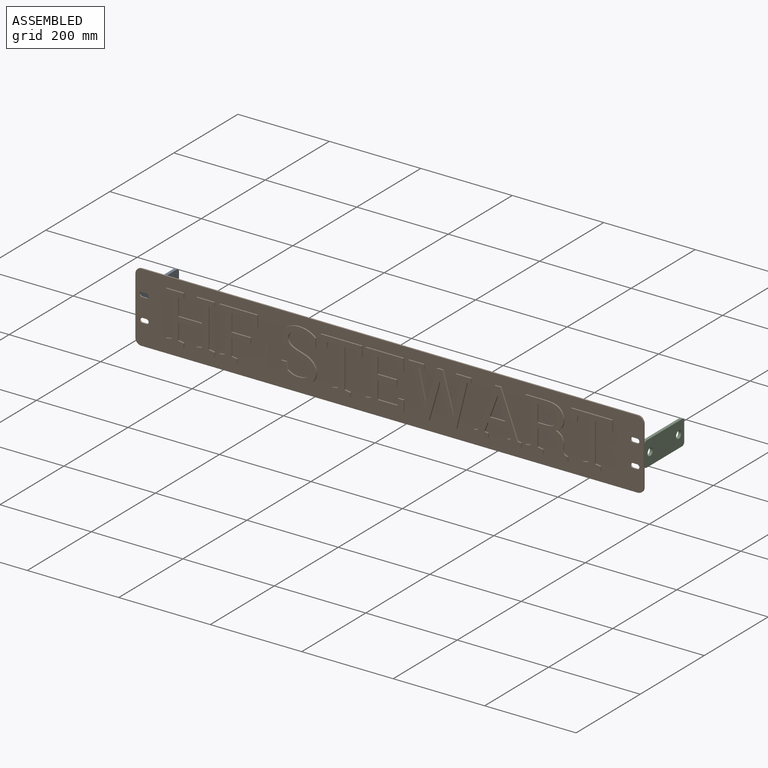
[diagram: assembled view]
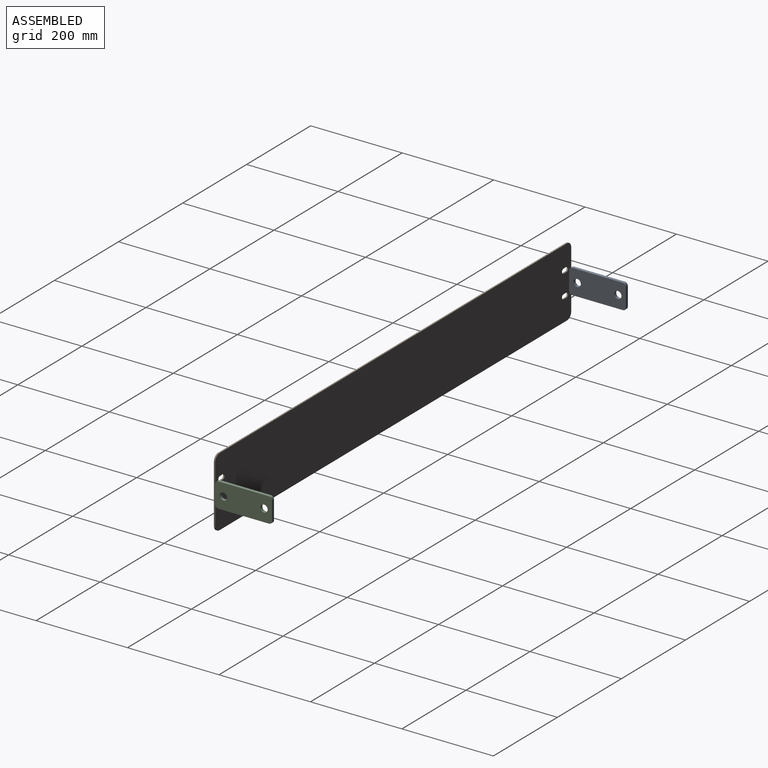
[diagram: assembled view, second angle]
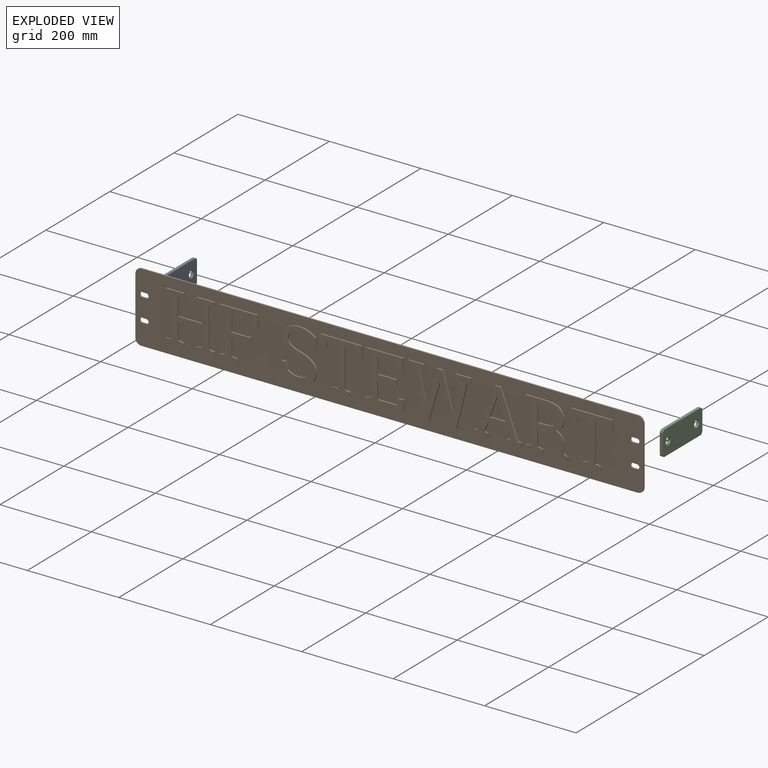
[diagram: exploded view]
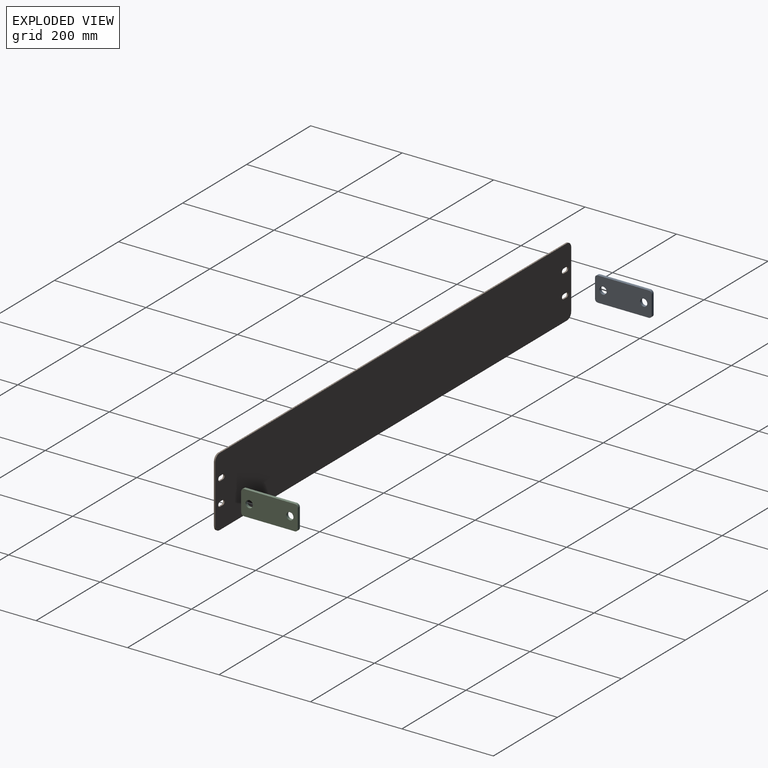
[diagram: exploded view, second angle]
ASSEMBLY  parts=3 mates=2
PART A: 12 faces, bbox 123.8x6.4x54 mm
  f0: plane 41.28x6.35mm, normal (1,0,0), area 262.1mm2, adj f1,f9,f10,f11
  f1: cylinder r=6.35mm len=6.35mm, axis (0,1,0), area 63.3mm2, adj f0,f2,f10,f11
  f2: plane 111.13x6.35mm, normal (0,0,1), area 705.6mm2, adj f1,f3,f10,f11
  f3: cylinder r=6.35mm len=6.35mm, axis (0,1,0), area 63.3mm2, adj f2,f4,f10,f11
  f4: plane 41.28x6.35mm, normal (-1,0,0), area 262.1mm2, adj f3,f5,f10,f11
  f5: cylinder r=6.35mm len=6.35mm, axis (0,1,0), area 63.3mm2, adj f4,f6,f10,f11
  f6: plane 111.13x6.35mm, normal (0,0,-1), area 705.6mm2, adj f5,f9,f10,f11
  f7: cylinder r=7.94mm len=15.88mm, axis (0,1,0), area 316.7mm2, adj f10,f11
  f8: cylinder r=7.94mm len=15.88mm, axis (0,1,0), area 316.7mm2, adj f10,f11
  f9: cylinder r=6.35mm len=6.35mm, axis (0,1,0), area 63.3mm2, adj f0,f6,f10,f11
  f10: plane 123.83x53.98mm, normal (0,-1,0), area 6253mm2, adj f0,f1,f2,f3,f4,f5,f6,f7
  f11: plane 123.83x53.98mm, normal (0,1,0), area 6253mm2, adj f0,f1,f2,f3,f4,f5,f6,f7
PART B: 250 faces, bbox 1111.3x6.4x152.4 mm
  f0: plane 127x3.18mm, normal (-1,0,0), area 403.2mm2, adj f4,f23,f24,f227
  f1: plane 1085.85x3.18mm, normal (0,0,-1), area 3447.6mm2, adj f4,f5,f24,f227
  f2: plane 127x3.18mm, normal (1,0,0), area 403.2mm2, adj f5,f6,f24,f227
  f3: plane 1085.85x3.18mm, normal (0,0,1), area 3447.6mm2, adj f6,f23,f24,f227
  f4: cylinder r=12.7mm len=12.7mm, axis (0,1,0), area 63.3mm2, adj f0,f1,f24,f227
  f5: cylinder r=12.7mm len=12.7mm, axis (0,1,0), area 63.3mm2, adj f1,f2,f24,f227
  f6: cylinder r=12.7mm len=12.7mm, axis (0,1,0), area 63.3mm2, adj f2,f3,f24,f227
  f7: plane 9.53x3.18mm, normal (0,0,-1), area 30.2mm2, adj f8,f19,f24,f227
  f8: cylinder r=5.08mm len=10.16mm, axis (0,1,0), area 50.7mm2, adj f7,f9,f24,f227
  f9: plane 9.53x3.18mm, normal (0,0,1), area 30.2mm2, adj f8,f19,f24,f227
  f10: plane 9.53x3.18mm, normal (0,0,-1), area 30.2mm2, adj f11,f20,f24,f227
  f11: cylinder r=5.08mm len=10.16mm, axis (0,1,0), area 50.7mm2, adj f10,f12,f24,f227
  f12: plane 9.53x3.18mm, normal (0,0,1), area 30.2mm2, adj f11,f20,f24,f227
  f13: plane 9.53x3.18mm, normal (0,0,-1), area 30.2mm2, adj f14,f21,f24,f227
  f14: cylinder r=5.08mm len=10.16mm, axis (0,1,0), area 50.7mm2, adj f13,f15,f24,f227
  f15: plane 9.53x3.18mm, normal (0,0,1), area 30.2mm2, adj f14,f21,f24,f227
  f16: cylinder r=5.08mm len=10.16mm, axis (0,1,0), area 50.7mm2, adj f17,f22,f24,f227
  f17: plane 9.53x3.18mm, normal (0,0,-1), area 30.2mm2, adj f16,f18,f24,f227
  f18: cylinder r=5.08mm len=10.16mm, axis (0,1,0), area 50.7mm2, adj f17,f22,f24,f227
  f19: cylinder r=5.08mm len=10.16mm, axis (0,1,0), area 50.7mm2, adj f7,f9,f24,f227
  f20: cylinder r=5.08mm len=10.16mm, axis (0,1,0), area 50.7mm2, adj f10,f12,f24,f227
  f21: cylinder r=5.08mm len=10.16mm, axis (0,1,0), area 50.7mm2, adj f13,f15,f24,f227
  f22: plane 9.53x3.18mm, normal (0,0,1), area 30.2mm2, adj f16,f18,f24,f227
  f23: cylinder r=12.7mm len=12.7mm, axis (0,1,0), area 63.3mm2, adj f0,f3,f24,f227
  f24: plane 1111.25x152.4mm, normal (0,1,0), area 168504.7mm2, adj f0,f1,f2,f3,f4,f5,f6,f7
  f25: plane 12.07x3.18mm, normal (-0.17,0,-0.99), area 38.9mm2, adj f26,f226,f227,f249
  f26: plane 9.42x3.18mm, normal (-1,0,0), area 29.9mm2, adj f25,f27,f227,f249
  f27: plane 38.76x3.18mm, normal (0,0,1), area 123.1mm2, adj f26,f28,f227,f249
  f28: plane 9.42x3.18mm, normal (1,0,0), area 29.9mm2, adj f27,f29,f227,f249
  f29: plane 12.07x3.18mm, normal (0.17,0,-0.99), area 38.9mm2, adj f28,f30,f227,f249
  f30: plane 37.29x3.18mm, normal (1,0,0), area 118.4mm2, adj f29,f31,f227,f249
  f31: plane 52.33x3.18mm, normal (0,0,1), area 166.1mm2, adj f30,f32,f227,f249
  f32: plane 37.29x3.18mm, normal (-1,0,0), area 118.4mm2, adj f31,f33,f227,f249
  f33: plane 12.07x3.18mm, normal (-0.17,0,-0.99), area 38.9mm2, adj f32,f34,f227,f249
  f34: plane 9.42x3.18mm, normal (-1,0,0), area 29.9mm2, adj f33,f35,f227,f249
  f35: plane 38.76x3.18mm, normal (0,0,1), area 123.1mm2, adj f34,f36,f227,f249
  f36: plane 9.42x3.18mm, normal (1,0,0), area 29.9mm2, adj f35,f37,f227,f249
  f37: plane 12.07x3.18mm, normal (0.17,0,-0.99), area 38.9mm2, adj f36,f38,f227,f249
  f38: plane 85.04x3.18mm, normal (1,0,0), area 270mm2, adj f37,f39,f227,f249
  f39: plane 12.07x3.18mm, normal (0.17,0,0.99), area 38.9mm2, adj f38,f40,f227,f249
  f40: plane 9.35x3.18mm, normal (1,0,0), area 29.7mm2, adj f39,f41,f227,f249
  f41: plane 38.76x3.18mm, normal (0,0,-1), area 123.1mm2, adj f40,f42,f227,f249
  f42: plane 9.35x3.18mm, normal (-1,0,0), area 29.7mm2, adj f41,f43,f227,f249
  f43: plane 12.07x3.18mm, normal (-0.17,0,0.99), area 38.9mm2, adj f42,f44,f227,f249
  f44: plane 36.24x3.18mm, normal (-1,0,0), area 115.1mm2, adj f43,f45,f227,f249
  f45: plane 52.33x3.18mm, normal (0,0,-1), area 166.1mm2, adj f44,f46,f227,f249
  f46: plane 36.24x3.18mm, normal (1,0,0), area 115.1mm2, adj f45,f47,f227,f249
  f47: plane 12.07x3.18mm, normal (0.17,0,0.99), area 38.9mm2, adj f46,f48,f227,f249
  f48: plane 9.35x3.18mm, normal (1,0,0), area 29.7mm2, adj f47,f49,f227,f249
  f49: plane 38.76x3.18mm, normal (0,0,-1), area 123.1mm2, adj f48,f50,f227,f249
  f50: plane 9.35x3.18mm, normal (-1,0,0), area 29.7mm2, adj f49,f51,f227,f249
  f51: plane 12.07x3.18mm, normal (-0.17,0,0.99), area 38.9mm2, adj f50,f226,f227,f249
  f52: plane 9.35x3.18mm, normal (-1,0,0), area 29.7mm2, adj f53,f218,f227,f235
  f53: plane 12.07x3.18mm, normal (-0.17,0,0.99), area 38.9mm2, adj f52,f54,f227,f235
  f54: plane 85.04x3.18mm, normal (-1,0,0), area 270mm2, adj f53,f55,f227,f235
  f55: plane 12.07x3.18mm, normal (-0.17,0,-0.99), area 38.9mm2, adj f54,f56,f227,f235
  f56: plane 9.42x3.18mm, normal (-1,0,0), area 29.9mm2, adj f55,f57,f227,f235
  f57: plane 83.4x3.18mm, normal (0,0,1), area 264.8mm2, adj f56,f58,f227,f235
  f58: plane 25.95x3.18mm, normal (1,0,0), area 82.4mm2, adj f57,f59,f227,f235
  f59: plane 12.45x3.18mm, normal (0,0,-1), area 39.5mm2, adj f58,f60,f227,f235
  f60: plane 14.47x3.18mm, normal (-1,0,-0.08), area 46.1mm2, adj f59,f61,f227,f235
  f61: plane 43.08x3.18mm, normal (0,0,-1), area 136.8mm2, adj f60,f62,f227,f235
  f62: plane 37.22x3.18mm, normal (1,0,0), area 118.2mm2, adj f61,f63,f227,f235
  f63: plane 41.72x3.18mm, normal (0,0,1), area 132.5mm2, adj f62,f64,f227,f235
  f64: plane 11.48x3.18mm, normal (1,0,0), area 36.5mm2, adj f63,f65,f227,f235
  f65: plane 41.72x3.18mm, normal (0,0,-1), area 132.5mm2, adj f64,f66,f227,f235
  f66: plane 36.34x3.18mm, normal (1,0,0), area 115.4mm2, adj f65,f67,f227,f235
  f67: plane 12.07x3.18mm, normal (0.17,0,0.99), area 38.9mm2, adj f66,f68,f227,f235
  f68: plane 9.35x3.18mm, normal (1,0,0), area 29.7mm2, adj f67,f218,f227,f235
  f69: plane 20.09x3.18mm, normal (1,0,0), area 63.8mm2, adj f70,f219,f227,f234
  f70: plane 11.05x3.18mm, normal (0,0,-1), area 35.1mm2, adj f69,f71,f227,f234
  f71: plane 15.42x3.18mm, normal (-0.98,0,-0.18), area 49.7mm2, adj f70,f72,f227,f234
  f72: extruded ~8.88x4.67mm, area 32.1mm2, adj f71,f73,f227,f234
  f73: extruded ~12.89x3.18mm, area 41.5mm2, adj f72,f74,f227,f234
  f74: extruded ~17.87x4.92mm, area 60mm2, adj f73,f75,f227,f234
  f75: extruded ~12.87x6.23mm, area 47.1mm2, adj f74,f76,f227,f234
  f76: extruded ~11.74x6.33mm, area 44.1mm2, adj f75,f77,f227,f234
  f77: extruded ~20.49x8.25mm, area 70.5mm2, adj f76,f78,f227,f234
  f78: extruded ~25.91x12.47mm, area 92.3mm2, adj f77,f79,f227,f234
  f79: extruded ~20.39x8.86mm, area 72.8mm2, adj f78,f80,f227,f234
  f80: extruded ~20.98x10.64mm, area 77.7mm2, adj f79,f81,f227,f234
  f81: extruded ~27.84x7.93mm, area 93.5mm2, adj f80,f82,f227,f234
  f82: extruded ~22.13x4.08mm, area 71.9mm2, adj f81,f83,f227,f234
  f83: extruded ~15.75x10.67mm, area 60.9mm2, adj f82,f84,f227,f234
  f84: plane 20.09x3.18mm, normal (-1,0,0), area 63.8mm2, adj f83,f85,f227,f234
  f85: plane 10.98x3.18mm, normal (0,0,1), area 34.9mm2, adj f84,f86,f227,f234
  f86: plane 15.49x3.18mm, normal (0.98,0,0.18), area 50mm2, adj f85,f87,f227,f234
  f87: extruded ~10.09x5.7mm, area 37mm2, adj f86,f88,f227,f234
  f88: extruded ~14.01x3.18mm, area 45.3mm2, adj f87,f89,f227,f234
  f89: extruded ~17.46x4.66mm, area 58.3mm2, adj f88,f90,f227,f234
  f90: extruded ~12.68x6.4mm, area 47mm2, adj f89,f91,f227,f234
  f91: extruded ~12.41x5.55mm, area 44.5mm2, adj f90,f92,f227,f234
  f92: extruded ~19.64x8.42mm, area 68.5mm2, adj f91,f93,f227,f234
  f93: extruded ~26.77x12.01mm, area 93.9mm2, adj f92,f94,f227,f234
  f94: extruded ~19.94x9.64mm, area 72.8mm2, adj f93,f95,f227,f234
  f95: extruded ~21.09x10.76mm, area 78mm2, adj f94,f96,f227,f234
  f96: extruded ~27.95x8.42mm, area 94.5mm2, adj f95,f97,f227,f234
  f97: extruded ~20.64x3.89mm, area 67.1mm2, adj f96,f219,f227,f234
  f98: plane 89.69x3.18mm, normal (0,0,1), area 284.8mm2, adj f99,f220,f227,f233
  f99: plane 23.86x3.18mm, normal (1,0,0), area 75.8mm2, adj f98,f100,f227,f233
  f100: plane 12.45x3.18mm, normal (0,0,-1), area 39.5mm2, adj f99,f101,f227,f233
  f101: plane 12.38x3.18mm, normal (-1,0,-0.09), area 39.5mm2, adj f100,f102,f227,f233
  f102: plane 23.93x3.18mm, normal (0,0,-1), area 76mm2, adj f101,f103,f227,f233
  f103: plane 85.04x3.18mm, normal (1,0,0), area 270mm2, adj f102,f104,f227,f233
  f104: plane 12.07x3.18mm, normal (0.17,0,0.99), area 38.9mm2, adj f103,f105,f227,f233
  f105: plane 9.35x3.18mm, normal (1,0,0), area 29.7mm2, adj f104,f106,f227,f233
  f106: plane 38.76x3.18mm, normal (0,0,-1), area 123.1mm2, adj f105,f107,f227,f233
  f107: plane 9.35x3.18mm, normal (-1,0,0), area 29.7mm2, adj f106,f108,f227,f233
  f108: plane 12.07x3.18mm, normal (-0.17,0,0.99), area 38.9mm2, adj f107,f109,f227,f233
  f109: plane 85.04x3.18mm, normal (-1,0,0), area 270mm2, adj f108,f110,f227,f233
  f110: plane 24.01x3.18mm, normal (0,0,-1), area 76.2mm2, adj f109,f111,f227,f233
  f111: plane 12.38x3.18mm, normal (1,0,-0.08), area 39.5mm2, adj f110,f112,f227,f233
  f112: plane 12.52x3.18mm, normal (0,0,-1), area 39.8mm2, adj f111,f220,f227,f233
  f113: plane 83.69x3.18mm, normal (0,0,-1), area 265.7mm2, adj f114,f221,f227,f232
  f114: plane 9.35x3.18mm, normal (-1,0,0), area 29.7mm2, adj f113,f115,f227,f232
  f115: plane 12.07x3.18mm, normal (-0.17,0,0.99), area 38.9mm2, adj f114,f116,f227,f232
  f116: plane 85.04x3.18mm, normal (-1,0,0), area 270mm2, adj f115,f117,f227,f232
  f117: plane 12.07x3.18mm, normal (-0.17,0,-0.99), area 38.9mm2, adj f116,f118,f227,f232
  f118: plane 9.42x3.18mm, normal (-1,0,0), area 29.9mm2, adj f117,f119,f227,f232
  f119: plane 82.88x3.18mm, normal (0,0,1), area 263.1mm2, adj f118,f120,f227,f232
  f120: plane 25.95x3.18mm, normal (1,0,0), area 82.4mm2, adj f119,f121,f227,f232
  f121: plane 12.52x3.18mm, normal (0,0,-1), area 39.8mm2, adj f120,f122,f227,f232
  f122: plane 14.47x3.18mm, normal (-1,0,-0.08), area 46.1mm2, adj f121,f123,f227,f232
  f123: plane 42.48x3.18mm, normal (0,0,-1), area 134.9mm2, adj f122,f124,f227,f232
  f124: plane 34.92x3.18mm, normal (1,0,0), area 110.9mm2, adj f123,f125,f227,f232
  f125: plane 41.3x3.18mm, normal (0,0,1), area 131.1mm2, adj f124,f126,f227,f232
  f126: plane 11.5x3.18mm, normal (1,0,0), area 36.5mm2, adj f125,f127,f227,f232
  f127: plane 41.3x3.18mm, normal (0,0,-1), area 131.1mm2, adj f126,f128,f227,f232
  f128: plane 38.62x3.18mm, normal (1,0,0), area 122.6mm2, adj f127,f129,f227,f232
  f129: plane 43.36x3.18mm, normal (0,0,1), area 137.7mm2, adj f128,f130,f227,f232
  f130: plane 14.47x3.18mm, normal (-1,0,0.08), area 46.1mm2, adj f129,f131,f227,f232
  f131: plane 12.45x3.18mm, normal (0,0,1), area 39.5mm2, adj f130,f221,f227,f232
  f132: plane 9.42x3.18mm, normal (1,0,0), area 29.9mm2, adj f133,f222,f227,f231
  f133: plane 10.96x3.18mm, normal (0.15,0,-0.99), area 35.2mm2, adj f132,f134,f227,f231
  f134: plane 59.44x13.85mm, normal (0.97,0,0.23), area 193.8mm2, adj f133,f135,f227,f231
  f135: plane 13.5x3.18mm, normal (0.99,0,0.15), area 43.3mm2, adj f134,f136,f227,f231
  f136: plane 3.18x0.45mm, normal (0.16,0,0.99), area 1.4mm2, adj f135,f137,f227,f231
  f137: plane 13.57x3.18mm, normal (-0.98,0,0.21), area 44mm2, adj f136,f138,f227,f231
  f138: plane 70.57x19.88mm, normal (-0.96,0,0.27), area 232.8mm2, adj f137,f139,f227,f231
  f139: plane 12.88x3.18mm, normal (0,0,1), area 40.9mm2, adj f138,f140,f227,f231
  f140: plane 70.57x19.95mm, normal (0.96,0,0.27), area 232.8mm2, adj f139,f141,f227,f231
  f141: plane 13.85x3.18mm, normal (0.98,0,0.21), area 45mm2, adj f140,f142,f227,f231
  f142: plane 3.18x0.45mm, normal (0,0,1), area 1.4mm2, adj f141,f143,f227,f231
  f143: plane 13.85x3.18mm, normal (-0.99,0,0.15), area 44.5mm2, adj f142,f144,f227,f231
  f144: plane 59.44x13.57mm, normal (-0.97,0,0.22), area 193.6mm2, adj f143,f145,f227,f231
  f145: plane 11.03x3.18mm, normal (-0.15,0,-0.99), area 35.4mm2, adj f144,f146,f227,f231
  f146: plane 9.42x3.18mm, normal (-1,0,0), area 29.9mm2, adj f145,f147,f227,f231
  f147: plane 34.3x3.18mm, normal (0,0,1), area 108.9mm2, adj f146,f148,f227,f231
  f148: plane 9.42x3.18mm, normal (1,0,0), area 29.9mm2, adj f147,f149,f227,f231
  f149: plane 8.66x3.18mm, normal (0.13,0,-0.99), area 27.7mm2, adj f148,f150,f227,f231
  f150: plane 97.4x23.51mm, normal (0.97,0,-0.23), area 318.1mm2, adj f149,f151,f227,f231
  f151: plane 13.05x3.18mm, normal (0,0,-1), area 41.4mm2, adj f150,f152,f227,f231
  f152: plane 74.86x21.35mm, normal (-0.96,0,-0.27), area 247.2mm2, adj f151,f153,f227,f231
  f153: plane 9.73x3.18mm, normal (-0.98,0,-0.19), area 31.5mm2, adj f152,f154,f227,f231
  f154: plane 3.18x0.45mm, normal (0,0,-1), area 1.4mm2, adj f153,f155,f227,f231
  f155: plane 9.73x3.18mm, normal (0.98,0,-0.19), area 31.4mm2, adj f154,f156,f227,f231
  f156: plane 74.86x21.63mm, normal (0.96,0,-0.28), area 247.4mm2, adj f155,f157,f227,f231
  f157: plane 12.98x3.18mm, normal (0,0,-1), area 41.2mm2, adj f156,f158,f227,f231
  f158: plane 97.4x23.51mm, normal (-0.97,0,-0.23), area 318.1mm2, adj f157,f159,f227,f231
  f159: plane 8.68x3.18mm, normal (-0.13,0,-0.99), area 27.8mm2, adj f158,f160,f227,f231
  f160: plane 9.42x3.18mm, normal (-1,0,0), area 29.9mm2, adj f159,f222,f227,f231
  f161: plane 9.35x3.18mm, normal (-1,0,0), area 29.7mm2, adj f162,f223,f227,f230
  f162: plane 7.99x3.18mm, normal (-0.14,0,0.99), area 25.6mm2, adj f161,f163,f227,f230
  f163: plane 97.47x37.74mm, normal (-0.93,0,0.36), area 331.8mm2, adj f162,f164,f227,f230
  f164: plane 12.52x3.18mm, normal (0,0,1), area 39.8mm2, adj f163,f165,f227,f230
  f165: plane 97.47x37.08mm, normal (0.93,0,0.36), area 331.1mm2, adj f164,f166,f227,f230
  f166: plane 7.92x3.18mm, normal (0.14,0,0.99), area 25.4mm2, adj f165,f167,f227,f230
  f167: plane 9.35x3.18mm, normal (1,0,0), area 29.7mm2, adj f166,f168,f227,f230
  f168: plane 30.98x3.18mm, normal (0,0,-1), area 98.4mm2, adj f167,f169,f227,f230
  f169: plane 9.35x3.18mm, normal (-1,0,0), area 29.7mm2, adj f168,f170,f227,f230
  f170: plane 8.16x3.18mm, normal (-0.17,0,0.99), area 26.3mm2, adj f169,f171,f227,f230
  f171: plane 19.88x7.12mm, normal (-0.94,0,-0.34), area 67mm2, adj f170,f172,f227,f230
  f172: plane 43.22x3.18mm, normal (0,0,-1), area 137.2mm2, adj f171,f173,f227,f230
  f173: plane 19.88x7.35mm, normal (0.94,0,-0.35), area 67.3mm2, adj f172,f174,f227,f230
  f174: plane 8.16x3.18mm, normal (0.17,0,0.99), area 26.3mm2, adj f173,f175,f227,f230
  f175: plane 9.35x3.18mm, normal (1,0,0), area 29.7mm2, adj f174,f223,f227,f230
  f176: plane 89.69x3.18mm, normal (0,0,1), area 284.8mm2, adj f177,f224,f227,f229
  f177: plane 23.86x3.18mm, normal (1,0,0), area 75.8mm2, adj f176,f178,f227,f229
  f178: plane 12.45x3.18mm, normal (0,0,-1), area 39.5mm2, adj f177,f179,f227,f229
  f179: plane 12.38x3.18mm, normal (-1,0,-0.09), area 39.5mm2, adj f178,f180,f227,f229
  f180: plane 23.93x3.18mm, normal (0,0,-1), area 76mm2, adj f179,f181,f227,f229
  f181: plane 85.04x3.18mm, normal (1,0,0), area 270mm2, adj f180,f182,f227,f229
  f182: plane 12.07x3.18mm, normal (0.17,0,0.99), area 38.9mm2, adj f181,f183,f227,f229
  f183: plane 9.35x3.18mm, normal (1,0,0), area 29.7mm2, adj f182,f184,f227,f229
  f184: plane 38.76x3.18mm, normal (0,0,-1), area 123.1mm2, adj f183,f185,f227,f229
  f185: plane 9.35x3.18mm, normal (-1,0,0), area 29.7mm2, adj f184,f186,f227,f229
  f186: plane 12.07x3.18mm, normal (-0.17,0,0.99), area 38.9mm2, adj f185,f187,f227,f229
  f187: plane 85.04x3.18mm, normal (-1,0,0), area 270mm2, adj f186,f188,f227,f229
  f188: plane 24.01x3.18mm, normal (0,0,-1), area 76.2mm2, adj f187,f189,f227,f229
  f189: plane 12.38x3.18mm, normal (1,0,-0.08), area 39.5mm2, adj f188,f190,f227,f229
  f190: plane 12.52x3.18mm, normal (0,0,-1), area 39.8mm2, adj f189,f224,f227,f229
  f191: plane 47.37x3.18mm, normal (0,0,1), area 150.4mm2, adj f192,f225,f227,f228
  f192: extruded ~27.05x7.82mm, area 91.2mm2, adj f191,f193,f227,f228
  f193: extruded ~22.21x9.41mm, area 79.3mm2, adj f192,f194,f227,f228
  f194: extruded ~13.92x4.36mm, area 47.1mm2, adj f193,f195,f227,f228
  f195: extruded ~12.52x9.56mm, area 50.7mm2, adj f194,f196,f227,f228
  f196: extruded ~12.71x9.42mm, area 51.4mm2, adj f195,f197,f227,f228
  f197: extruded ~16.08x3.89mm, area 53.2mm2, adj f196,f198,f227,f228
  f198: plane 8.68x3.18mm, normal (1,0,0), area 27.6mm2, adj f197,f199,f227,f228
  f199: extruded ~7.33x3.18mm, area 23.8mm2, adj f198,f200,f227,f228
  f200: extruded ~4.15x3.18mm, area 16.6mm2, adj f199,f201,f227,f228
  f201: plane 3.56x3.18mm, normal (0.13,0,0.99), area 11.4mm2, adj f200,f202,f227,f228
  f202: plane 9.56x3.18mm, normal (1,0,0), area 30.4mm2, adj f201,f203,f227,f228
  f203: plane 7.85x3.18mm, normal (0,0,-1), area 24.9mm2, adj f202,f204,f227,f228
  f204: extruded ~12.13x5.93mm, area 45mm2, adj f203,f205,f227,f228
  f205: extruded ~14.37x3.59mm, area 47.6mm2, adj f204,f206,f227,f228
  f206: plane 8.37x3.18mm, normal (-1,0,0), area 26.6mm2, adj f205,f207,f227,f228
  f207: extruded ~14.16x5.11mm, area 49mm2, adj f206,f208,f227,f228
  f208: extruded ~13.72x5.34mm, area 48.1mm2, adj f207,f209,f227,f228
  f209: plane 23.41x3.18mm, normal (0,0,-1), area 74.3mm2, adj f208,f210,f227,f228
  f210: plane 36.77x3.18mm, normal (1,0,0), area 116.7mm2, adj f209,f211,f227,f228
  f211: plane 12.07x3.18mm, normal (0.17,0,0.99), area 38.9mm2, adj f210,f212,f227,f228
  f212: plane 9.35x3.18mm, normal (1,0,0), area 29.7mm2, adj f211,f213,f227,f228
  f213: plane 38.76x3.18mm, normal (0,0,-1), area 123.1mm2, adj f212,f214,f227,f228
  f214: plane 9.35x3.18mm, normal (-1,0,0), area 29.7mm2, adj f213,f215,f227,f228
  f215: plane 12.07x3.18mm, normal (-0.17,0,0.99), area 38.9mm2, adj f214,f216,f227,f228
  f216: plane 85.04x3.18mm, normal (-1,0,0), area 270mm2, adj f215,f217,f227,f228
  f217: plane 12.07x3.18mm, normal (-0.17,0,-0.99), area 38.9mm2, adj f216,f225,f227,f228
  f218: plane 38.76x3.18mm, normal (0,0,-1), area 123.1mm2, adj f52,f68,f227,f235
  f219: extruded ~14.94x9.46mm, area 56.5mm2, adj f69,f97,f227,f234
  f220: plane 23.86x3.18mm, normal (-1,0,0), area 75.8mm2, adj f98,f112,f227,f233
  f221: plane 25.88x3.18mm, normal (1,0,0), area 82.2mm2, adj f113,f131,f227,f232
  f222: plane 34.25x3.18mm, normal (0,0,1), area 108.8mm2, adj f132,f160,f227,f231
  f223: plane 30.91x3.18mm, normal (0,0,-1), area 98.1mm2, adj f161,f175,f227,f230
  f224: plane 23.86x3.18mm, normal (-1,0,0), area 75.8mm2, adj f176,f190,f227,f229
  f225: plane 9.35x3.18mm, normal (-1,0,0), area 29.7mm2, adj f191,f217,f227,f228
  f226: plane 85.04x3.18mm, normal (-1,0,0), area 270mm2, adj f25,f51,f227,f249
  f227: plane 1111.25x152.4mm, normal (0,-1,0), area 130915.1mm2, adj f0,f1,f2,f3,f4,f5,f6,f7
  f228: plane 107.86x92.51mm, normal (0,-1,0), area 4350.1mm2, adj f191,f192,f193,f194,f195,f196,f197,f198
  f229: plane 107.93x89.69mm, normal (0,-1,0), area 3012.1mm2, adj f176,f177,f178,f179,f180,f181,f182,f183
  f230: plane 107.93x103.25mm, normal (0,-1,0), area 3675.2mm2, adj f161,f162,f163,f164,f165,f166,f167,f168
  f231: plane 137.58x107.93mm, normal (0,-1,0), area 5764.4mm2, adj f132,f133,f134,f135,f136,f137,f138,f139
  f232: plane 107.93x83.69mm, normal (0,-1,0), area 3977.6mm2, adj f113,f114,f115,f116,f117,f118,f119,f120
  f233: plane 107.93x89.69mm, normal (0,-1,0), area 3012.1mm2, adj f98,f99,f100,f101,f102,f103,f104,f105
  f234: plane 111.06x76.36mm, normal (0,-1,0), area 3534.7mm2, adj f69,f70,f71,f72,f73,f74,f75,f76
  f235: plane 107.93x83.4mm, normal (0,-1,0), area 3272.7mm2, adj f52,f53,f54,f55,f56,f57,f58,f59
  f236: plane 46.33x17.06mm, normal (0.94,0,-0.35), area 156.7mm2, adj f230,f237,f239,f240
  f237: plane 34.25x3.18mm, normal (0,0,1), area 108.8mm2, adj f230,f236,f238,f240
  f238: plane 46.33x16.75mm, normal (-0.94,0,-0.34), area 156.4mm2, adj f230,f237,f239,f240
  f239: plane 3.18x0.45mm, normal (0,0,-1), area 1.4mm2, adj f230,f236,f238,f240
  f240: plane 46.33x34.25mm, normal (0,-1,0), area 803.8mm2, adj f236,f237,f238,f239
  f241: plane 36.77x3.18mm, normal (1,0,0), area 116.7mm2, adj f228,f242,f247,f248
  f242: plane 19.19x3.18mm, normal (0,0,1), area 60.9mm2, adj f228,f241,f243,f248
  f243: extruded ~17.8x4.66mm, area 59.6mm2, adj f228,f242,f244,f248
  f244: extruded ~13.65x5.56mm, area 48.4mm2, adj f228,f243,f245,f248
  f245: extruded ~13.49x5.34mm, area 47.4mm2, adj f228,f244,f246,f248
  f246: extruded ~16.53x4.97mm, area 56.1mm2, adj f228,f245,f247,f248
  f247: plane 20.68x3.18mm, normal (0,0,-1), area 65.7mm2, adj f228,f241,f246,f248
  f248: plane 42.55x36.77mm, normal (0,-1,0), area 1425mm2, adj f241,f242,f243,f244,f245,f246,f247
  f249: plane 107.93x105.7mm, normal (0,-1,0), area 4761.8mm2, adj f25,f26,f27,f28,f29,f30,f31,f32
PART C: same geometry as A
PLACE A rot(axis=(0,0,1),90deg) t=(-570.86,132.24,113.92)mm
PLACE B t=(-15.23,70.33,113.92)mm
PLACE C rot(axis=(0,0,-1),90deg) t=(540.39,132.24,113.92)mm
MATE fastened A.f4 <-> B.f24  axis (0,-1,0) through (-570.86,70.33,113.92)mm
MATE fastened C.f0 <-> B.f24  axis (0,-1,0) through (540.39,70.33,113.92)mm
